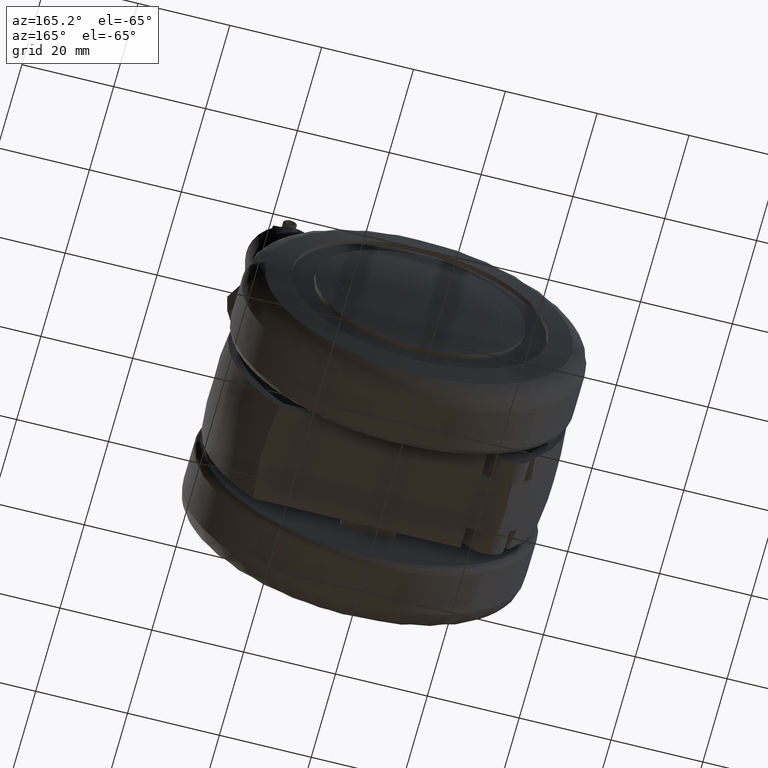
[diagram: clean part render]
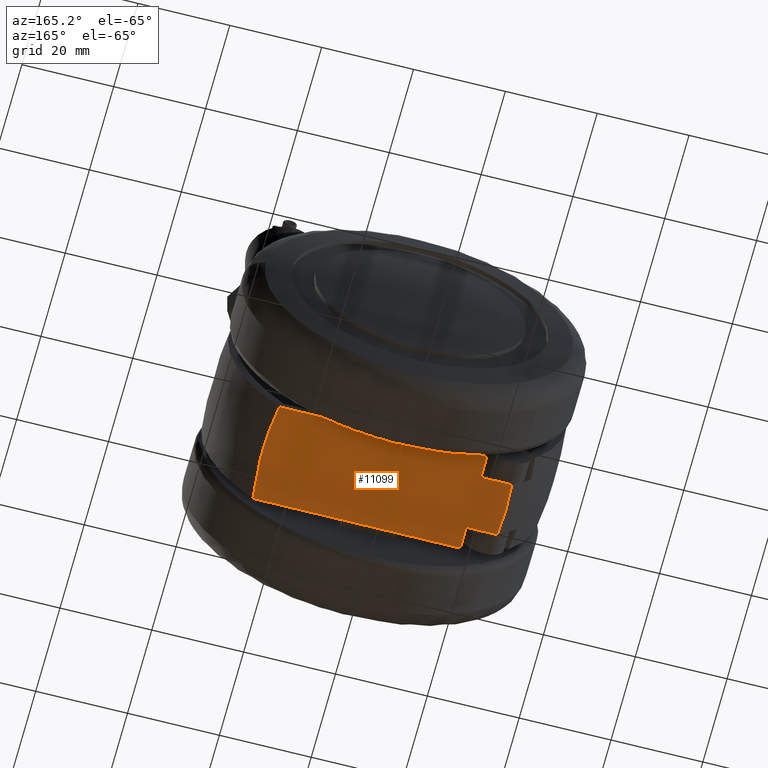
[diagram: same view with one face highlighted and labeled with its STEP entity id]
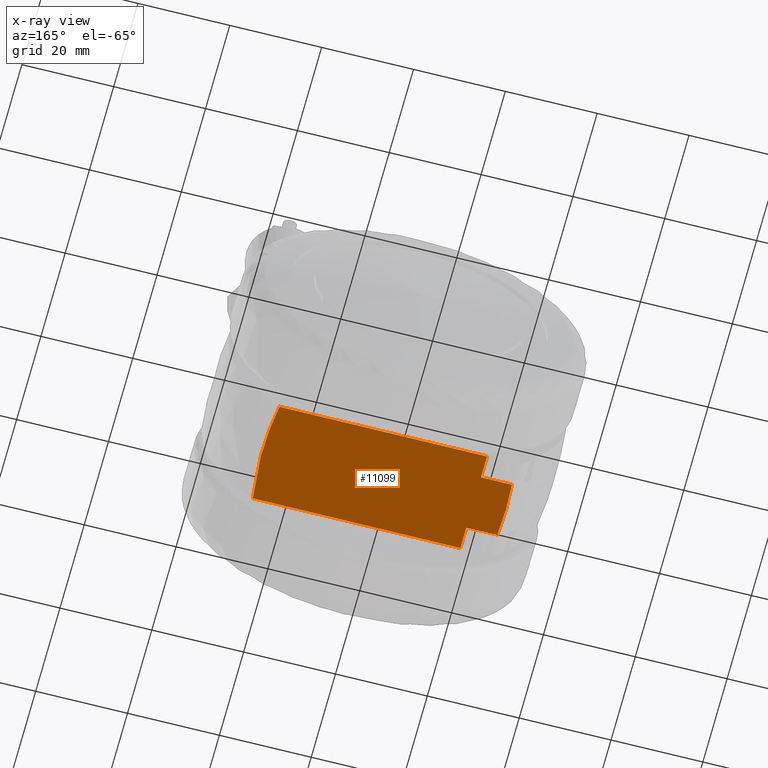
[diagram: x-ray of the same camera — body ghosted, the highlighted face saturated]
A machine part, auxiliary view. The second image highlights one B-rep face of the part: STEP entity #11099.
The next image is the same camera in x-ray: the body ghosted, the highlighted face saturated — about 0% of this face is hidden behind the body in this view.
In plain terms, the highlighted face is a freeform B-spline surface patch.
Its self-contained STEP definition (entity closure, byte-faithful):
#8532=CARTESIAN_POINT('',(-24.532998322843198,6.000000000000171,-26.500000000000000));
#8533=VERTEX_POINT('',#8532);
#8607=CARTESIAN_POINT('',(-19.532998322843198,11.0,-26.500000000000000));
#8608=VERTEX_POINT('',#8607);
#8614=CARTESIAN_POINT('',(-19.532998322843198,6.000000000000120,-26.500000000000000));
#8615=VERTEX_POINT('',#8614);
#8616=CARTESIAN_POINT('',(-19.532998322843198,6.000000000000120,-26.500000000000000));
#8617=CARTESIAN_POINT('',(-19.532998322843198,11.0,-26.500000000000000));
#8618=QUASI_UNIFORM_CURVE('',1,(#8616,#8617),.UNSPECIFIED.,.F.,.U.);
#8619=EDGE_CURVE('',#8615,#8608,#8618,.T.);
#9164=CARTESIAN_POINT('',(-24.532998322843198,-6.000000000000171,-26.500000000000000));
#9165=VERTEX_POINT('',#9164);
#9227=CARTESIAN_POINT('',(-19.532998322843198,-11.0,-26.500000000000000));
#9228=VERTEX_POINT('',#9227);
#9241=CARTESIAN_POINT('',(-19.532998322843198,-6.000000000000120,-26.500000000000000));
#9242=VERTEX_POINT('',#9241);
#9248=CARTESIAN_POINT('',(-19.532998322843198,-6.000000000000120,-26.500000000000000));
#9249=CARTESIAN_POINT('',(-19.532998322843198,-11.0,-26.500000000000000));
#9250=QUASI_UNIFORM_CURVE('',1,(#9248,#9249),.UNSPECIFIED.,.F.,.U.);
#9251=EDGE_CURVE('',#9242,#9228,#9250,.T.);
#10543=CARTESIAN_POINT('',(25.668174477342198,11.0,-26.500000000000000));
#10544=VERTEX_POINT('',#10543);
#10561=CARTESIAN_POINT('',(25.668174477342198,-11.0,-26.500000000000000));
#10562=VERTEX_POINT('',#10561);
#10578=CARTESIAN_POINT('',(25.668174477342198,-11.0,-26.500000000000000));
#10579=CARTESIAN_POINT('',(25.747290699295380,-10.502611656667900,-26.500000000000000));
#10580=CARTESIAN_POINT('',(25.821030233414710,-10.003664202228469,-26.500000000000000));
#10581=CARTESIAN_POINT('',(25.935889202038290,-9.162870875150501,-26.499999999999989));
#10582=CARTESIAN_POINT('',(25.979910894233420,-8.821681419239015,-26.500000000000000));
#10583=CARTESIAN_POINT('',(26.062827251024490,-8.139113561363457,-26.500000000000011));
#10584=CARTESIAN_POINT('',(26.179546266781831,-7.114777280485564,-26.500000000000000));
#10585=CARTESIAN_POINT('',(26.273459132808700,-6.088997669173718,-26.500000000000000));
#10586=CARTESIAN_POINT('',(26.431159238988592,-4.035531889188074,-26.500000000000000));
#10587=CARTESIAN_POINT('',(26.496171828855520,-2.664015580718195,-26.499999999999989));
#10588=CARTESIAN_POINT('',(26.527496107864490,-0.946459555234643,-26.500000000000000));
#10589=CARTESIAN_POINT('',(26.531260206157480,-0.602790084956708,-26.500000000000000));
#10590=CARTESIAN_POINT('',(26.533777433528410,0.084865984288472,-26.500000000000000));
#10591=CARTESIAN_POINT('',(26.532525059637440,0.429867672435623,-26.500000000000000));
#10592=CARTESIAN_POINT('',(26.521223775801129,1.462707540241923,-26.500000000000000));
#10593=CARTESIAN_POINT('',(26.503654109606948,2.149890858345353,-26.500000000000000));
#10594=CARTESIAN_POINT('',(26.421074845682320,4.207343426828853,-26.500000000000000));
#10595=CARTESIAN_POINT('',(26.326242034530640,5.573521745622610,-26.500000000000000));
#10596=CARTESIAN_POINT('',(26.057140035778691,8.294981878633884,-26.500000000000000));
#10597=CARTESIAN_POINT('',(25.882875619918678,9.650264347404098,-26.499999999999989));
#10598=CARTESIAN_POINT('',(25.668174477342198,11.0,-26.500000000000000));
#10599=B_SPLINE_CURVE_WITH_KNOTS('',3,(#10578,#10579,#10580,#10581,#10582,#10583,#10584,#10585,#10586,#10587,#10588,#10589,#10590,#10591,#10592,#10593,#10594,#10595,#10596,#10597,#10598),.UNSPECIFIED.,.F.,.U.,(4,2,2,1,2,2,2,2,2,2,4),(0.832259243853951,0.843750000000001,0.851562500000001,0.859375000000001,0.875000000000001,0.906250000000001,0.914062500000001,0.921875000000001,0.937500000000000,0.968750000000000,1.0),.UNSPECIFIED.);
#10600=EDGE_CURVE('',#10562,#10544,#10599,.T.);
#10737=CARTESIAN_POINT('',(-26.277752691815699,6.000000000000131,-26.500000000000000));
#10738=VERTEX_POINT('',#10737);
#10752=CARTESIAN_POINT('',(-26.277752691814349,-6.000000000000131,-26.500000000000000));
#10753=VERTEX_POINT('',#10752);
#10754=CARTESIAN_POINT('',(-26.277752691815699,6.000000000000131,-26.500000000000000));
#10755=CARTESIAN_POINT('',(-26.394811249554980,4.628748067753020,-26.500000000000000));
#10756=CARTESIAN_POINT('',(-26.471048806099610,3.260090275754686,-26.500000000000000));
#10757=CARTESIAN_POINT('',(-26.544234119883399,0.527813491730460,-26.500000000000000));
#10758=CARTESIAN_POINT('',(-26.538322829562041,-2.107997896562179,-26.500000000000000));
#10759=CARTESIAN_POINT('',(-26.385791363790219,-4.734491696180245,-26.500000000000000));
#10760=CARTESIAN_POINT('',(-26.277752691814349,-6.000000000000131,-26.500000000000000));
#10761=B_SPLINE_CURVE_WITH_KNOTS('',3,(#10754,#10755,#10756,#10757,#10758,#10759,#10760),.UNSPECIFIED.,.F.,.U.,(4,2,1,4),(0.0,0.031250000000000,0.062500000000000,0.091654797159967),.UNSPECIFIED.);
#10762=EDGE_CURVE('',#10738,#10753,#10761,.T.);
#10877=CARTESIAN_POINT('',(25.668174477342198,-11.0,-26.500000000000000));
#10878=CARTESIAN_POINT('',(-19.532998322843198,-11.0,-26.500000000000000));
#10879=QUASI_UNIFORM_CURVE('',1,(#10877,#10878),.UNSPECIFIED.,.F.,.U.);
#10880=EDGE_CURVE('',#10562,#9228,#10879,.T.);
#10924=CARTESIAN_POINT('',(-24.532998322843198,-6.000000000000171,-26.500000000000000));
#10925=CARTESIAN_POINT('',(-26.277752691814349,-6.000000000000131,-26.500000000000000));
#10926=QUASI_UNIFORM_CURVE('',1,(#10924,#10925),.UNSPECIFIED.,.F.,.U.);
#10927=EDGE_CURVE('',#9165,#10753,#10926,.T.);
#10975=CARTESIAN_POINT('',(-19.532998322843198,-6.000000000000120,-26.500000000000000));
#10976=CARTESIAN_POINT('',(-24.532998322843198,-6.000000000000171,-26.500000000000000));
#10977=QUASI_UNIFORM_CURVE('',1,(#10975,#10976),.UNSPECIFIED.,.F.,.U.);
#10978=EDGE_CURVE('',#9242,#9165,#10977,.T.);
#11070=CARTESIAN_POINT('',(-29.183657212490921,-12.098899957359730,-26.500000000000000));
#11071=CARTESIAN_POINT('',(29.183640054219602,-12.098899957359730,-26.500000000000000));
#11072=CARTESIAN_POINT('',(-29.183657212490921,12.098900547445711,-26.500000000000000));
#11073=CARTESIAN_POINT('',(29.183640054219602,12.098900547445711,-26.500000000000000));
#11074=B_SPLINE_SURFACE_WITH_KNOTS('',1,1,((#11070,#11072),(#11071,#11073)),.UNSPECIFIED.,.F.,.F.,.U.,(2,2),(2,2),(0.0,58.367297266710509),(0.0,24.197800504805450),.UNSPECIFIED.);
#11075=ORIENTED_EDGE('',*,*,#8619,.T.);
#11076=CARTESIAN_POINT('',(25.668174477342198,11.0,-26.500000000000000));
#11077=CARTESIAN_POINT('',(-19.532998322843198,11.0,-26.500000000000000));
#11078=QUASI_UNIFORM_CURVE('',1,(#11076,#11077),.UNSPECIFIED.,.F.,.U.);
#11079=EDGE_CURVE('',#10544,#8608,#11078,.T.);
#11080=ORIENTED_EDGE('',*,*,#11079,.F.);
#11081=ORIENTED_EDGE('',*,*,#10600,.F.);
#11082=ORIENTED_EDGE('',*,*,#10880,.T.);
#11083=ORIENTED_EDGE('',*,*,#9251,.F.);
#11084=ORIENTED_EDGE('',*,*,#10978,.T.);
#11085=ORIENTED_EDGE('',*,*,#10927,.T.);
#11086=ORIENTED_EDGE('',*,*,#10762,.F.);
#11087=CARTESIAN_POINT('',(-26.277752691815699,6.000000000000131,-26.500000000000000));
#11088=CARTESIAN_POINT('',(-24.532998322843198,6.000000000000171,-26.500000000000000));
#11089=QUASI_UNIFORM_CURVE('',1,(#11087,#11088),.UNSPECIFIED.,.F.,.U.);
#11090=EDGE_CURVE('',#10738,#8533,#11089,.T.);
#11091=ORIENTED_EDGE('',*,*,#11090,.T.);
#11092=CARTESIAN_POINT('',(-24.532998322843198,6.000000000000171,-26.500000000000000));
#11093=CARTESIAN_POINT('',(-19.532998322843198,6.000000000000120,-26.500000000000000));
#11094=QUASI_UNIFORM_CURVE('',1,(#11092,#11093),.UNSPECIFIED.,.F.,.U.);
#11095=EDGE_CURVE('',#8533,#8615,#11094,.T.);
#11096=ORIENTED_EDGE('',*,*,#11095,.T.);
#11097=EDGE_LOOP('',(#11075,#11080,#11081,#11082,#11083,#11084,#11085,#11086,#11091,#11096));
#11098=FACE_OUTER_BOUND('',#11097,.T.);
#11099=ADVANCED_FACE('',(#11098),#11074,.F.);